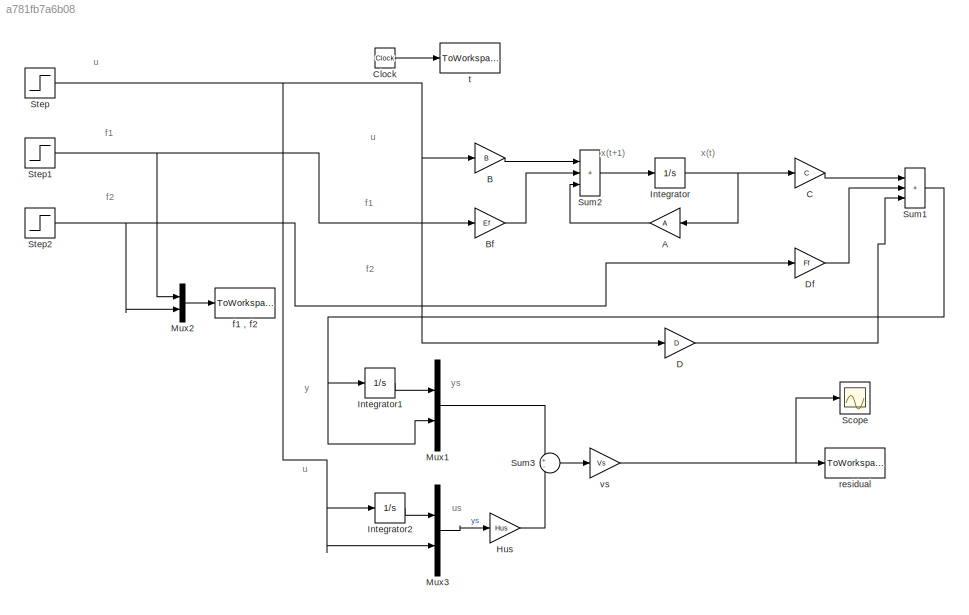
MODEL slx_a781fb7a6b08
KIND model
CONFIG AbsTol = auto
CONFIG EnableMultiTasking = on
CONFIG FixedStep = auto
CONFIG MaxStep = auto
CONFIG MinStep = auto
CONFIG RelTol = 1e-3
CONFIG SampleTimeConstraint = Unconstrained
CONFIG SolverName = ode45
CONFIG StartTime = 0.0
CONFIG StopTime = 30
BLOCK [Gain] A
  Gain = A
  Multiplication = Matrix(K*u)
BLOCK [Gain] B
  Gain = B
  Multiplication = Matrix(K*u)
BLOCK [Gain] Bf
  Gain = Ef
  Multiplication = Matrix(K*u)
BLOCK [Gain] C
  Gain = C
  Multiplication = Matrix(K*u)
BLOCK [Clock] Clock
BLOCK [Gain] D
  Gain = D
  Multiplication = Matrix(K*u)
BLOCK [Gain] Df
  Gain = Ff
  Multiplication = Matrix(K*u)
BLOCK [Gain] Hus
  Gain = Hus
  Multiplication = Matrix(K*u)
  SampleTime = .1
BLOCK [Integrator] Integrator
  Ports = [1, 1]
BLOCK [Integrator] Integrator1
  Ports = [1, 1]
BLOCK [Integrator] Integrator2
  Ports = [1, 1]
BLOCK [Mux] Mux1
  Inputs = 2
  Ports = [2, 1]
BLOCK [Mux] Mux2
  Inputs = 2
  Ports = [2, 1]
BLOCK [Mux] Mux3
  Inputs = 2
  Ports = [2, 1]
BLOCK [Scope] Scope
  Floating = off
  NumInputPorts = 1
  Ports = [1]
  ScopeSpecificationString = Simulink.scopes.TimeScopeBlockCfg('CurrentConfiguration', extmgr.ConfigurationSet(extmgr.Configuration('Core','General UI',true),extmgr.Configuration('Core','Source UI',true),extmgr.Configuration('Sources','WiredSimulink',true,'DataLoggingSaveFormat','StructureWithTime','DataLoggingLimitDataPoints',true,'DataLoggingDecimation','1','DataLoggingDecimateData',true),extmgr.Configuration('Visuals','Tim...<+1640ch>
BLOCK [Step] Step
  After = [1,1]
  SampleTime = 0
  Time = 0
BLOCK [Step] Step1
  After = [1,1,1]
  SampleTime = 0
BLOCK [Step] Step2
  After = [1,1,1,1]
  SampleTime = 0
BLOCK [Sum] Sum1
  IconShape = rectangular
  Inputs = +++
  Ports = [3, 1]
BLOCK [Sum] Sum2
  IconShape = rectangular
  Inputs = +++
  Ports = [3, 1]
BLOCK [Sum] Sum3
  Inputs = +-
  Ports = [2, 1]
  SampleTime = .1
BLOCK [ToWorkspace] f1 , f2
  MaxDataPoints = inf
  Ports = [1]
  SampleTime = .01
  VariableName = fd
BLOCK [ToWorkspace] residual
  MaxDataPoints = inf
  Ports = [1]
  SampleTime = .01
  VariableName = residual
BLOCK [ToWorkspace] t
  MaxDataPoints = inf
  Ports = [1]
  SampleTime = .01
  VariableName = t
BLOCK [Gain] vs
  Gain = Vs
  Multiplication = Matrix(K*u)
  SampleTime = .1
ANNOTATION (root): f1
ANNOTATION (root): f2
ANNOTATION (root): u
ANNOTATION (root): us
ANNOTATION (root): x(t)
ANNOTATION (root): x(t+1)
ANNOTATION (root): y
ANNOTATION (root): ys
LINE A:1 -> Sum2:3
LINE B:1 -> Sum2:1
LINE Bf:1 -> Sum2:2
LINE C:1 -> Sum1:1
LINE Clock:1 -> t:1
LINE D:1 -> Sum1:3
LINE Df:1 -> Sum1:2
LINE Hus:1 -> Sum3:2
LINE Integrator1:1 -> Mux1:1
LINE Integrator2:1 -> Mux3:1
NET Integrator:1 -> A:1, C:1
LINE Mux1:1 -> Sum3:1
LINE Mux2:1 -> f1 , f2:1
LINE Mux3:1 -> Hus:1
NET Step1:1 -> Bf:1, Mux2:1
NET Step2:1 -> Df:1, Mux2:2
NET Step:1 -> B:1, D:1, Integrator2:1, Mux3:2
NET Sum1:1 -> Integrator1:1, Mux1:2
LINE Sum2:1 -> Integrator:1
LINE Sum3:1 -> vs:1
NET vs:1 -> Scope:1, residual:1
note: NET lines group one-source signal fan-out (src -> all destinations, sorted); 1:1 wires keep LINE
